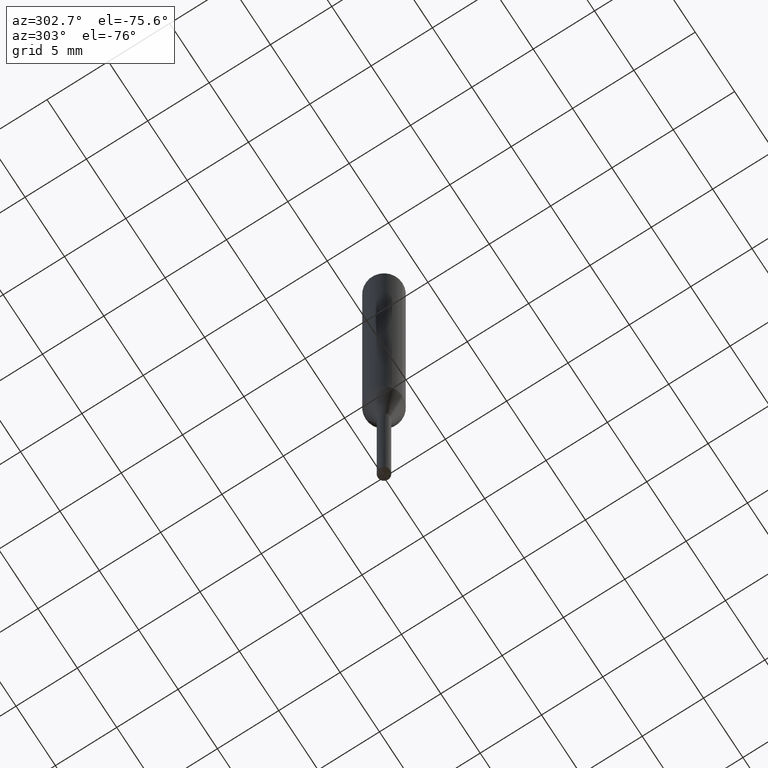
[diagram: clean part render]
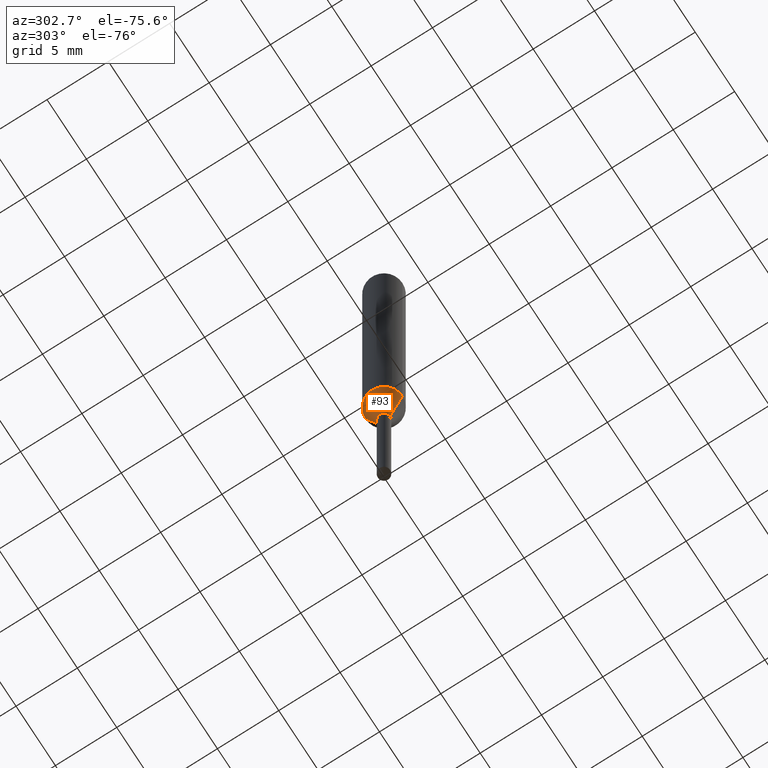
[diagram: same view with one face highlighted and labeled with its STEP entity id]
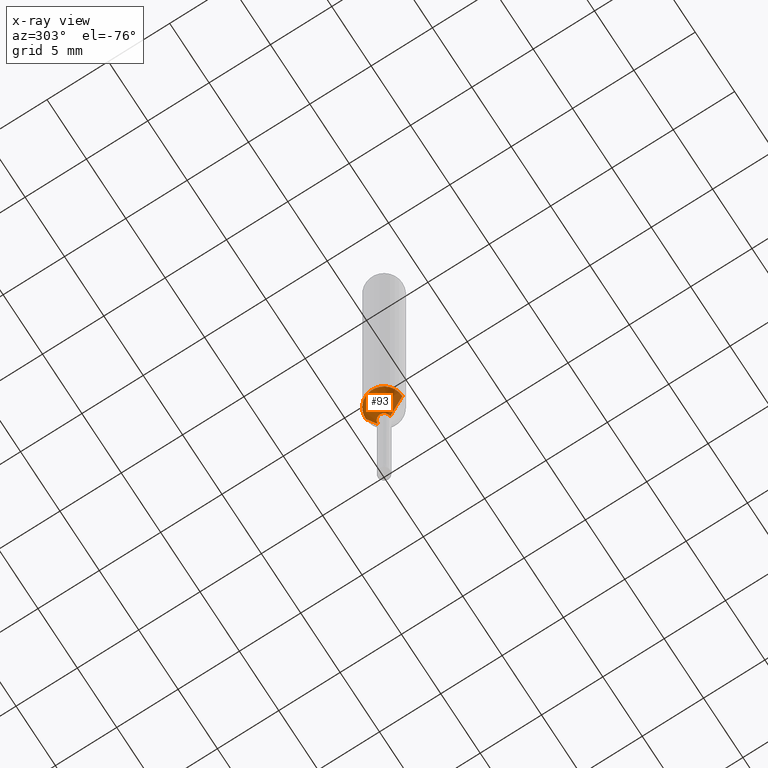
[diagram: x-ray of the same camera — body ghosted, the highlighted face saturated]
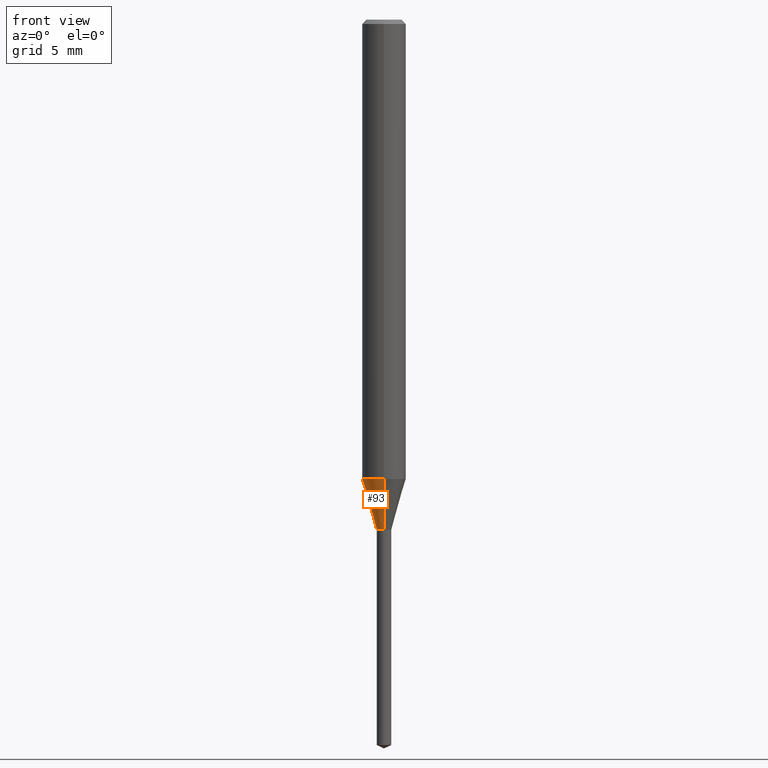
[diagram: same view with one face highlighted and labeled with its STEP entity id]
A machine part, auxiliary view. The second image highlights one B-rep face of the part: STEP entity #93.
The next image is the same camera in x-ray: the body ghosted, the highlighted face saturated — about 0% of this face is hidden behind the body in this view.
A second angle (front view) of the same face is appended — the face is thin or edge-on in the first view.
In plain terms, the highlighted conical surface has half-angle 16.006 deg.
Its self-contained STEP definition (entity closure, byte-faithful):
#93=ADVANCED_FACE('',(#228),#229,.T.);
#121=EDGE_CURVE('',#195,#171,#262,.T.);
#127=EDGE_CURVE('',#195,#165,#268,.T.);
#135=EDGE_CURVE('',#165,#139,#277,.T.);
#139=VERTEX_POINT('',#281);
#163=EDGE_CURVE('',#139,#171,#308,.T.);
#165=VERTEX_POINT('',#310);
#171=VERTEX_POINT('',#316);
#195=VERTEX_POINT('',#344);
#228=FACE_OUTER_BOUND('',#371,.T.);
#229=CONICAL_SURFACE('',#372,1.0,0.279349998205856);
#262=CIRCLE('',#409,0.5);
#268=LINE('',#418,#419);
#277=CIRCLE('',#431,1.5);
#281=CARTESIAN_POINT('',(0.0,1.5,-31.513));
#308=LINE('',#473,#474);
#310=CARTESIAN_POINT('',(1.83690953073357E-016,-1.5,-31.513));
#316=CARTESIAN_POINT('',(0.0,0.5,-34.9991339745962));
#344=CARTESIAN_POINT('',(6.12303176911189E-017,-0.5,-34.9991339745962));
#371=EDGE_LOOP('',(#539,#540,#541,#542));
#372=AXIS2_PLACEMENT_3D('',#543,#544,#545);
#409=AXIS2_PLACEMENT_3D('',#588,#589,#590);
#418=CARTESIAN_POINT('',(1.22460635382238E-016,-1.0,-33.2560669872981));
#419=VECTOR('',#592,1.0);
#431=AXIS2_PLACEMENT_3D('',#605,#606,#607);
#473=CARTESIAN_POINT('',(-1.22460635382238E-016,1.0,-33.2560669872981));
#474=VECTOR('',#645,1.0);
#539=ORIENTED_EDGE('',*,*,#163,.T.);
#540=ORIENTED_EDGE('',*,*,#121,.F.);
#541=ORIENTED_EDGE('',*,*,#127,.T.);
#542=ORIENTED_EDGE('',*,*,#135,.T.);
#543=CARTESIAN_POINT('',(0.0,0.0,-33.2560669872981));
#544=DIRECTION('',(-0.0,-0.0,1.0));
#545=DIRECTION('',(0.0,1.0,0.0));
#588=CARTESIAN_POINT('',(0.0,0.0,-34.9991339745962));
#589=DIRECTION('',(0.0,0.0,-1.0));
#590=DIRECTION('',(0.0,1.0,0.0));
#592=DIRECTION('',(3.37661815108076E-017,-0.275730902468478,0.961234866941435));
#605=CARTESIAN_POINT('',(0.0,0.0,-31.513));
#606=DIRECTION('',(0.0,0.0,-1.0));
#607=DIRECTION('',(0.0,1.0,0.0));
#645=DIRECTION('',(3.37661815108076E-017,-0.275730902468478,-0.961234866941435));